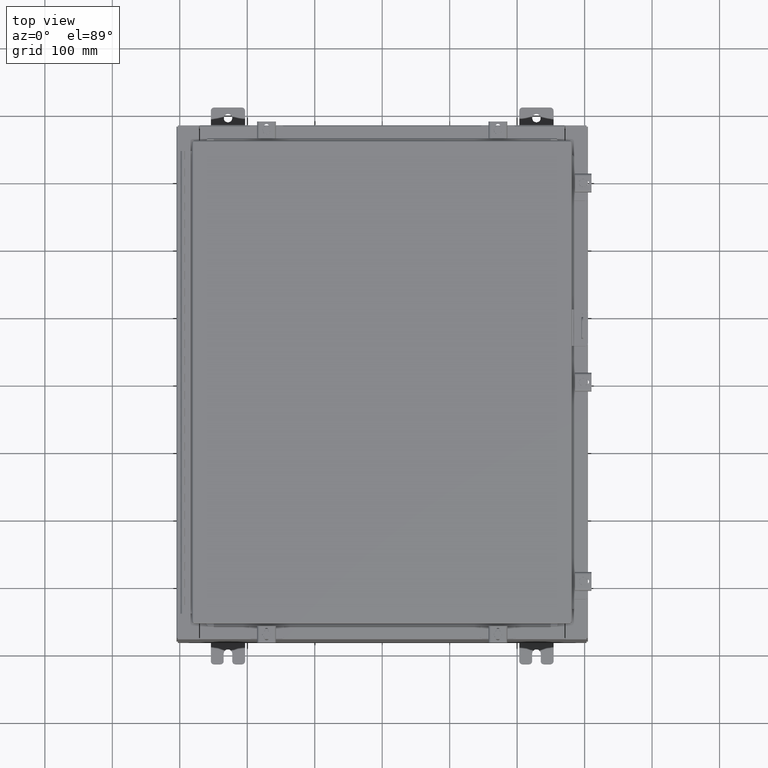
[diagram: clean part render]
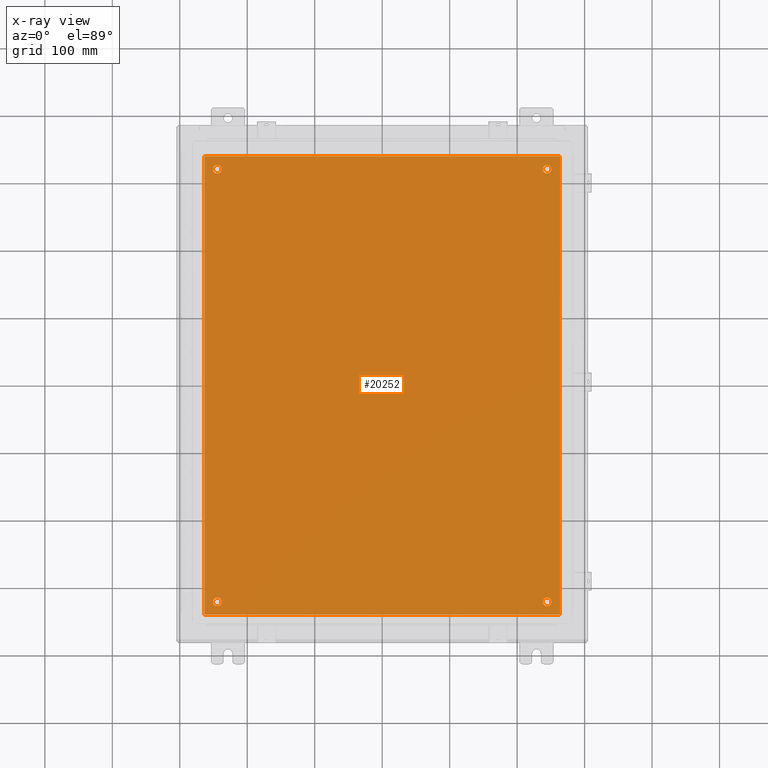
[diagram: x-ray — body ghosted, one internal face saturated and labeled with its STEP entity id]
A machine part, top view, then the same camera in x-ray: the body is ghosted and one INTERNAL B-rep face — a face not visible from any outside direction — is saturated and labeled: STEP entity #20252.
In plain terms, the highlighted planar face has unit normal (0, 0, -1).
Its self-contained STEP definition (entity closure, byte-faithful):
#1 = CIRCLE ( 'NONE', #37270, 0.2499999999999998100 ) ;
#15 = EDGE_CURVE ( 'NONE', #31460, #14073, #23923, .T. ) ;
#158 = EDGE_CURVE ( 'NONE', #4823, #32712, #3768, .T. ) ;
#1154 = DIRECTION ( 'NONE',  ( -0.0000000000000000000, -0.0000000000000000000, 1.000000000000000000 ) ) ;
#1462 = EDGE_CURVE ( 'NONE', #32712, #20028, #30688, .T. ) ;
#1535 = EDGE_CURVE ( 'NONE', #29545, #36001, #20184, .T. ) ;
#1794 = EDGE_LOOP ( 'NONE', ( #21282, #14286 ) ) ;
#2120 = CARTESIAN_POINT ( 'NONE',  ( 9.875000000000007100, 12.62500000000000000, -0.1040000000000000400 ) ) ;
#2155 = DIRECTION ( 'NONE',  ( -1.000000000000000000, 0.0000000000000000000, 0.0000000000000000000 ) ) ;
#2276 = CARTESIAN_POINT ( 'NONE',  ( -10.38300000000000100, 13.38299999999999700, -0.1040000000000019500 ) ) ;
#2726 = VECTOR ( 'NONE', #23756, 39.37007874015748100 ) ;
#2815 = ORIENTED_EDGE ( 'NONE', *, *, #1535, .T. ) ;
#2884 = CARTESIAN_POINT ( 'NONE',  ( 9.375000000000007100, 12.62500000000000000, -0.1040000000000000400 ) ) ;
#3116 = PLANE ( 'NONE',  #13316 ) ;
#3768 = LINE ( 'NONE', #2276, #34014 ) ;
#3954 = EDGE_CURVE ( 'NONE', #36001, #29545, #26075, .T. ) ;
#4407 = DIRECTION ( 'NONE',  ( -1.000000000000000000, -0.0000000000000000000, -0.0000000000000000000 ) ) ;
#4823 = VERTEX_POINT ( 'NONE', #35462 ) ;
#4882 = DIRECTION ( 'NONE',  ( -0.0000000000000000000, -0.0000000000000000000, 1.000000000000000000 ) ) ;
#4955 = FACE_BOUND ( 'NONE', #14068, .T. ) ;
#6329 = AXIS2_PLACEMENT_3D ( 'NONE', #6436, #26861, #9407 ) ;
#6436 = CARTESIAN_POINT ( 'NONE',  ( -9.625000000000007100, 12.62500000000000000, -0.1040000000000000400 ) ) ;
#6683 = ORIENTED_EDGE ( 'NONE', *, *, #158, .F. ) ;
#6935 = CIRCLE ( 'NONE', #31549, 0.2500000000000008900 ) ;
#6986 = EDGE_LOOP ( 'NONE', ( #17335, #22470 ) ) ;
#7103 = DIRECTION ( 'NONE',  ( -0.0000000000000000000, -0.0000000000000000000, 1.000000000000000000 ) ) ;
#8607 = VECTOR ( 'NONE', #4407, 39.37007874015748100 ) ;
#9297 = EDGE_CURVE ( 'NONE', #20028, #24675, #27888, .T. ) ;
#9351 = CARTESIAN_POINT ( 'NONE',  ( -9.625000000000007100, -12.62500000000000000, -0.1040000000000000400 ) ) ;
#9407 = DIRECTION ( 'NONE',  ( -1.000000000000000000, 0.0000000000000000000, 0.0000000000000000000 ) ) ;
#9914 = CARTESIAN_POINT ( 'NONE',  ( -9.875000000000007100, 12.62500000000000000, -0.1040000000000000400 ) ) ;
#10483 = DIRECTION ( 'NONE',  ( -0.0000000000000000000, -0.0000000000000000000, 1.000000000000000000 ) ) ;
#10556 = CARTESIAN_POINT ( 'NONE',  ( 9.625000000000007100, -12.62500000000000000, -0.1040000000000000400 ) ) ;
#11198 = DIRECTION ( 'NONE',  ( 0.0000000000000000000, -1.000000000000000000, 0.0000000000000000000 ) ) ;
#11440 = CIRCLE ( 'NONE', #23682, 0.2499999999999998100 ) ;
#11869 = FACE_OUTER_BOUND ( 'NONE', #20390, .T. ) ;
#12001 = EDGE_CURVE ( 'NONE', #24675, #4823, #16360, .T. ) ;
#12023 = DIRECTION ( 'NONE',  ( -1.000000000000000000, 0.0000000000000000000, -0.0000000000000000000 ) ) ;
#12298 = DIRECTION ( 'NONE',  ( -1.000000000000000000, 0.0000000000000000000, 0.0000000000000000000 ) ) ;
#12442 = EDGE_CURVE ( 'NONE', #23732, #37968, #25940, .T. ) ;
#12522 = EDGE_LOOP ( 'NONE', ( #30692, #17672 ) ) ;
#13316 = AXIS2_PLACEMENT_3D ( 'NONE', #23480, #29479, #12023 ) ;
#13487 = DIRECTION ( 'NONE',  ( -1.000000000000000000, 0.0000000000000000000, 0.0000000000000000000 ) ) ;
#13505 = CIRCLE ( 'NONE', #28896, 0.2499999999999998100 ) ;
#13981 = CARTESIAN_POINT ( 'NONE',  ( 9.375000000000007100, -12.62500000000000000, -0.1040000000000000400 ) ) ;
#14024 = CARTESIAN_POINT ( 'NONE',  ( -9.375000000000007100, -12.62500000000000000, -0.1040000000000000400 ) ) ;
#14068 = EDGE_LOOP ( 'NONE', ( #34559, #2815 ) ) ;
#14073 = VERTEX_POINT ( 'NONE', #13981 ) ;
#14075 = VERTEX_POINT ( 'NONE', #2120 ) ;
#14286 = ORIENTED_EDGE ( 'NONE', *, *, #18866, .T. ) ;
#14746 = CARTESIAN_POINT ( 'NONE',  ( -10.38300000000000100, -13.38299999999999900, -0.1040000000000008600 ) ) ;
#14969 = CARTESIAN_POINT ( 'NONE',  ( 10.38300000000000100, -13.38299999999999700, -0.1040000000000008600 ) ) ;
#16086 = CARTESIAN_POINT ( 'NONE',  ( 10.50000000000000400, 13.38299999999999900, -0.1040000000000008600 ) ) ;
#16360 = LINE ( 'NONE', #16086, #8607 ) ;
#16843 = CARTESIAN_POINT ( 'NONE',  ( 10.38300000000000100, 13.38299999999999700, -0.1040000000000008600 ) ) ;
#17335 = ORIENTED_EDGE ( 'NONE', *, *, #25008, .T. ) ;
#17672 = ORIENTED_EDGE ( 'NONE', *, *, #35455, .T. ) ;
#17761 = DIRECTION ( 'NONE',  ( 1.000000000000000000, -0.0000000000000000000, -0.0000000000000000000 ) ) ;
#18162 = CARTESIAN_POINT ( 'NONE',  ( -9.875000000000007100, -12.62500000000000000, -0.1040000000000000400 ) ) ;
#18713 = CARTESIAN_POINT ( 'NONE',  ( -9.625000000000007100, 12.62500000000000000, -0.1040000000000000400 ) ) ;
#18866 = EDGE_CURVE ( 'NONE', #14073, #31460, #1, .T. ) ;
#19617 = FACE_BOUND ( 'NONE', #6986, .T. ) ;
#19735 = DIRECTION ( 'NONE',  ( -0.0000000000000000000, -0.0000000000000000000, 1.000000000000000000 ) ) ;
#19920 = CARTESIAN_POINT ( 'NONE',  ( -9.375000000000007100, 12.62500000000000000, -0.1040000000000000400 ) ) ;
#20028 = VERTEX_POINT ( 'NONE', #37036 ) ;
#20184 = CIRCLE ( 'NONE', #22845, 0.2500000000000008900 ) ;
#20252 = ADVANCED_FACE ( 'NONE', ( #4955, #35198, #27345, #19617, #11869 ), #3116, .T. ) ;
#20390 = EDGE_LOOP ( 'NONE', ( #35368, #6683, #27441, #22436 ) ) ;
#21282 = ORIENTED_EDGE ( 'NONE', *, *, #15, .T. ) ;
#21656 = DIRECTION ( 'NONE',  ( -1.000000000000000000, 0.0000000000000000000, 0.0000000000000000000 ) ) ;
#22397 = CARTESIAN_POINT ( 'NONE',  ( 9.625000000000007100, 12.62500000000000000, -0.1040000000000000400 ) ) ;
#22436 = ORIENTED_EDGE ( 'NONE', *, *, #9297, .F. ) ;
#22470 = ORIENTED_EDGE ( 'NONE', *, *, #12442, .T. ) ;
#22845 = AXIS2_PLACEMENT_3D ( 'NONE', #9351, #29752, #12298 ) ;
#23316 = AXIS2_PLACEMENT_3D ( 'NONE', #10556, #30966, #13487 ) ;
#23480 = CARTESIAN_POINT ( 'NONE',  ( 0.0000000000000000000, 0.0000000000000000000, -0.1040000000000000400 ) ) ;
#23682 = AXIS2_PLACEMENT_3D ( 'NONE', #27911, #10483, #30896 ) ;
#23732 = VERTEX_POINT ( 'NONE', #9914 ) ;
#23756 = DIRECTION ( 'NONE',  ( 0.0000000000000000000, 1.000000000000000000, 0.0000000000000000000 ) ) ;
#23923 = CIRCLE ( 'NONE', #23316, 0.2499999999999998100 ) ;
#24590 = CARTESIAN_POINT ( 'NONE',  ( -9.625000000000007100, -12.62500000000000000, -0.1040000000000000400 ) ) ;
#24675 = VERTEX_POINT ( 'NONE', #16843 ) ;
#25008 = EDGE_CURVE ( 'NONE', #37968, #23732, #6935, .T. ) ;
#25323 = DIRECTION ( 'NONE',  ( -1.000000000000000000, 0.0000000000000000000, 0.0000000000000000000 ) ) ;
#25940 = CIRCLE ( 'NONE', #6329, 0.2500000000000008900 ) ;
#26075 = CIRCLE ( 'NONE', #35943, 0.2500000000000008900 ) ;
#26861 = DIRECTION ( 'NONE',  ( -0.0000000000000000000, -0.0000000000000000000, 1.000000000000000000 ) ) ;
#26919 = CARTESIAN_POINT ( 'NONE',  ( 9.875000000000007100, -12.62500000000000000, -0.1040000000000000400 ) ) ;
#27345 = FACE_BOUND ( 'NONE', #12522, .T. ) ;
#27441 = ORIENTED_EDGE ( 'NONE', *, *, #12001, .F. ) ;
#27519 = DIRECTION ( 'NONE',  ( -1.000000000000000000, 0.0000000000000000000, 0.0000000000000000000 ) ) ;
#27888 = LINE ( 'NONE', #14969, #2726 ) ;
#27911 = CARTESIAN_POINT ( 'NONE',  ( 9.625000000000007100, 12.62500000000000000, -0.1040000000000000400 ) ) ;
#28896 = AXIS2_PLACEMENT_3D ( 'NONE', #22397, #4882, #25323 ) ;
#29479 = DIRECTION ( 'NONE',  ( 0.0000000000000000000, 0.0000000000000000000, -1.000000000000000000 ) ) ;
#29545 = VERTEX_POINT ( 'NONE', #18162 ) ;
#29752 = DIRECTION ( 'NONE',  ( -0.0000000000000000000, -0.0000000000000000000, 1.000000000000000000 ) ) ;
#30688 = LINE ( 'NONE', #32359, #37568 ) ;
#30692 = ORIENTED_EDGE ( 'NONE', *, *, #30917, .T. ) ;
#30896 = DIRECTION ( 'NONE',  ( -1.000000000000000000, 0.0000000000000000000, 0.0000000000000000000 ) ) ;
#30917 = EDGE_CURVE ( 'NONE', #14075, #35102, #13505, .T. ) ;
#30966 = DIRECTION ( 'NONE',  ( -0.0000000000000000000, -0.0000000000000000000, 1.000000000000000000 ) ) ;
#31460 = VERTEX_POINT ( 'NONE', #26919 ) ;
#31549 = AXIS2_PLACEMENT_3D ( 'NONE', #18713, #1154, #21656 ) ;
#32359 = CARTESIAN_POINT ( 'NONE',  ( -10.50000000000000200, -13.38299999999999900, -0.1040000000000008600 ) ) ;
#32712 = VERTEX_POINT ( 'NONE', #14746 ) ;
#34014 = VECTOR ( 'NONE', #11198, 39.37007874015748100 ) ;
#34559 = ORIENTED_EDGE ( 'NONE', *, *, #3954, .T. ) ;
#35102 = VERTEX_POINT ( 'NONE', #2884 ) ;
#35198 = FACE_BOUND ( 'NONE', #1794, .T. ) ;
#35368 = ORIENTED_EDGE ( 'NONE', *, *, #1462, .F. ) ;
#35455 = EDGE_CURVE ( 'NONE', #35102, #14075, #11440, .T. ) ;
#35462 = CARTESIAN_POINT ( 'NONE',  ( -10.38300000000000100, 13.38299999999999700, -0.1040000000000019500 ) ) ;
#35943 = AXIS2_PLACEMENT_3D ( 'NONE', #24590, #7103, #27519 ) ;
#36001 = VERTEX_POINT ( 'NONE', #14024 ) ;
#37036 = CARTESIAN_POINT ( 'NONE',  ( 10.38300000000000100, -13.38299999999999700, -0.1040000000000008600 ) ) ;
#37256 = CARTESIAN_POINT ( 'NONE',  ( 9.625000000000007100, -12.62500000000000000, -0.1040000000000000400 ) ) ;
#37270 = AXIS2_PLACEMENT_3D ( 'NONE', #37256, #19735, #2155 ) ;
#37568 = VECTOR ( 'NONE', #17761, 39.37007874015748100 ) ;
#37968 = VERTEX_POINT ( 'NONE', #19920 ) ;